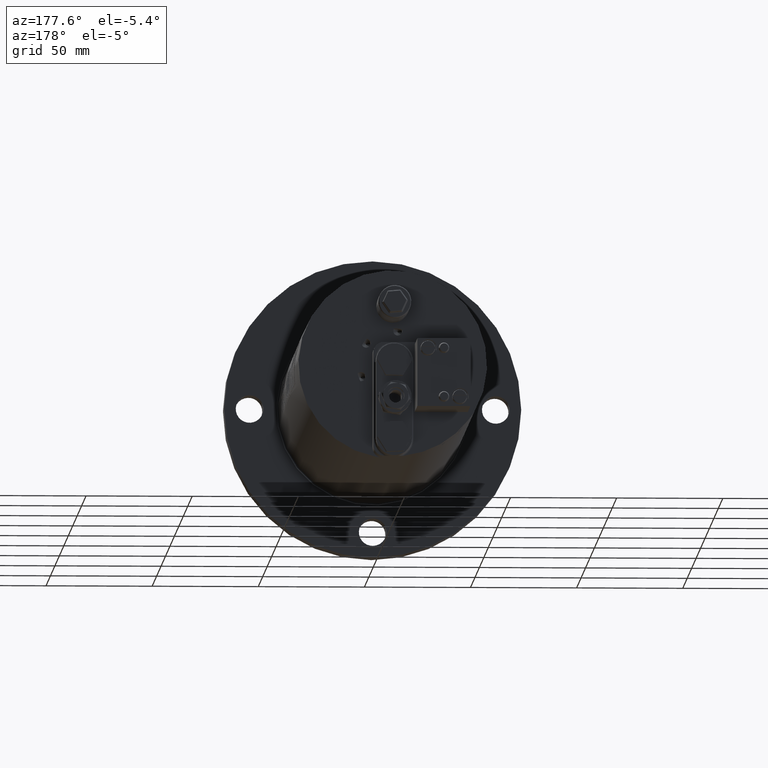
[diagram: clean part render]
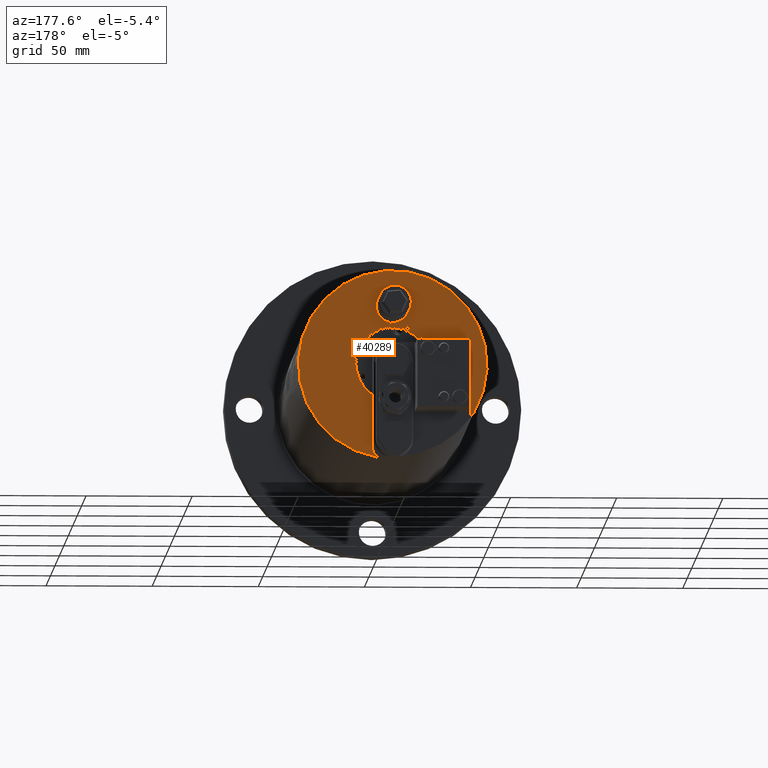
[diagram: same view with one face highlighted and labeled with its STEP entity id]
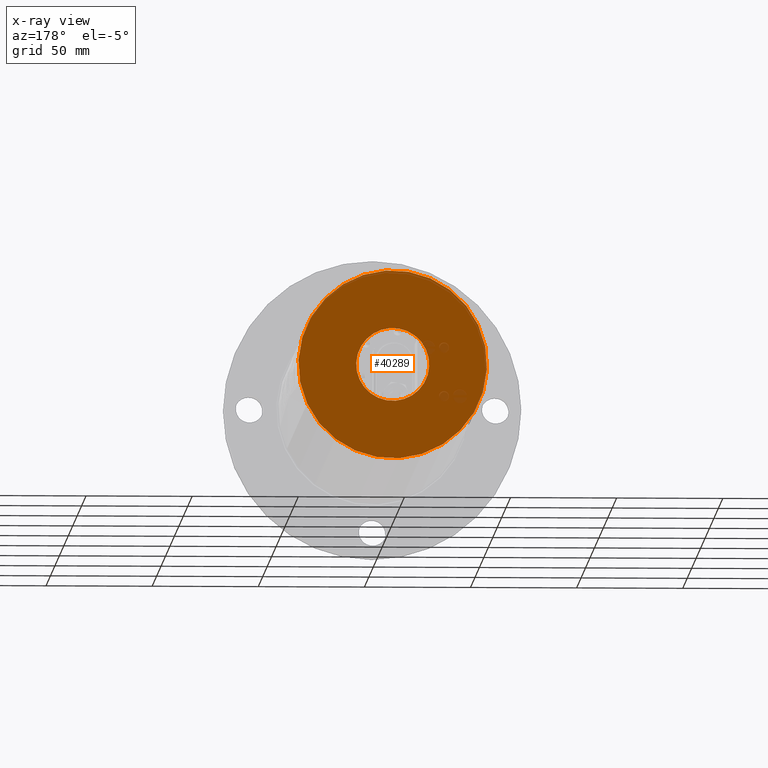
[diagram: x-ray of the same camera — body ghosted, the highlighted face saturated]
A machine part, auxiliary view. The second image highlights one B-rep face of the part: STEP entity #40289.
The next image is the same camera in x-ray: the body ghosted, the highlighted face saturated — about 2% of this face is hidden behind the body in this view.
In plain terms, the highlighted planar face has unit normal (0, 1, -0).
Its self-contained STEP definition (entity closure, byte-faithful):
#642 = VERTEX_POINT ( 'NONE', #10277 ) ;
#1740 = CIRCLE ( 'NONE', #8647, 44.45000000000001000 ) ;
#2229 = CIRCLE ( 'NONE', #34206, 17.20000000000000300 ) ;
#2609 = CARTESIAN_POINT ( 'NONE',  ( -31.81297453405828400, 218.4999999999999700, -31.04411621056921400 ) ) ;
#6696 = DIRECTION ( 'NONE',  ( 0.7157024642082970800, 4.136638137209480600E-017, 0.6984053140735480000 ) ) ;
#7114 = AXIS2_PLACEMENT_3D ( 'NONE', #24178, #14652, #37709 ) ;
#8647 = AXIS2_PLACEMENT_3D ( 'NONE', #21641, #37926, #28518 ) ;
#9175 = CIRCLE ( 'NONE', #29756, 44.45000000000001000 ) ;
#9748 = DIRECTION ( 'NONE',  ( 1.634356603239235900E-016, 1.000000000000000000, -2.267131750214071800E-016 ) ) ;
#10021 = EDGE_CURVE ( 'NONE', #34559, #11498, #1740, .T. ) ;
#10277 = CARTESIAN_POINT ( 'NONE',  ( -12.31008238438219300, 218.4999999999999700, -12.01257140206502200 ) ) ;
#10901 = CIRCLE ( 'NONE', #7114, 17.20000000000000300 ) ;
#11498 = VERTEX_POINT ( 'NONE', #18090 ) ;
#12402 = VERTEX_POINT ( 'NONE', #35837 ) ;
#14652 = DIRECTION ( 'NONE',  ( 1.634356603239235400E-016, 1.000000000000000000, -2.267131750214072300E-016 ) ) ;
#14962 = AXIS2_PLACEMENT_3D ( 'NONE', #36096, #9748, #6696 ) ;
#15001 = EDGE_CURVE ( 'NONE', #642, #12402, #10901, .T. ) ;
#16059 = FACE_OUTER_BOUND ( 'NONE', #19546, .T. ) ;
#16639 = PLANE ( 'NONE',  #14962 ) ;
#17357 = DIRECTION ( 'NONE',  ( 1.634356603239235400E-016, 1.000000000000000000, -2.267131750214072300E-016 ) ) ;
#18090 = CARTESIAN_POINT ( 'NONE',  ( 31.81297453405932500, 218.4999999999999700, 31.04411621056922900 ) ) ;
#19546 = EDGE_LOOP ( 'NONE', ( #30281, #38845 ) ) ;
#20435 = DIRECTION ( 'NONE',  ( 0.7157024642082970800, 0.0000000000000000000, 0.6984053140735481100 ) ) ;
#21641 = CARTESIAN_POINT ( 'NONE',  ( 5.145308339522807200E-013, 218.4999999999999700, 5.654495854038370500E-015 ) ) ;
#24178 = CARTESIAN_POINT ( 'NONE',  ( 5.145308339522807200E-013, 218.4999999999999700, 5.654495854038370500E-015 ) ) ;
#28150 = ORIENTED_EDGE ( 'NONE', *, *, #15001, .F. ) ;
#28518 = DIRECTION ( 'NONE',  ( 0.7157024642082970800, 0.0000000000000000000, 0.6984053140735481100 ) ) ;
#29756 = AXIS2_PLACEMENT_3D ( 'NONE', #33504, #17357, #29876 ) ;
#29876 = DIRECTION ( 'NONE',  ( 0.7157024642082970800, 0.0000000000000000000, 0.6984053140735481100 ) ) ;
#30281 = ORIENTED_EDGE ( 'NONE', *, *, #30654, .T. ) ;
#30654 = EDGE_CURVE ( 'NONE', #11498, #34559, #9175, .T. ) ;
#33286 = ORIENTED_EDGE ( 'NONE', *, *, #38123, .F. ) ;
#33504 = CARTESIAN_POINT ( 'NONE',  ( 5.145308339522807200E-013, 218.4999999999999700, 5.654495854038370500E-015 ) ) ;
#33687 = DIRECTION ( 'NONE',  ( 1.634356603239235400E-016, 1.000000000000000000, -2.267131750214072300E-016 ) ) ;
#34206 = AXIS2_PLACEMENT_3D ( 'NONE', #36712, #33687, #20435 ) ;
#34559 = VERTEX_POINT ( 'NONE', #2609 ) ;
#35837 = CARTESIAN_POINT ( 'NONE',  ( 12.31008238438322700, 218.4999999999999700, 12.01257140206503500 ) ) ;
#36096 = CARTESIAN_POINT ( 'NONE',  ( 12.31008238438322700, 218.4999999999999700, 12.01257140206503700 ) ) ;
#36712 = CARTESIAN_POINT ( 'NONE',  ( 5.145308339522807200E-013, 218.4999999999999700, 5.654495854038370500E-015 ) ) ;
#37709 = DIRECTION ( 'NONE',  ( 0.7157024642082970800, 0.0000000000000000000, 0.6984053140735481100 ) ) ;
#37926 = DIRECTION ( 'NONE',  ( 1.634356603239235400E-016, 1.000000000000000000, -2.267131750214072300E-016 ) ) ;
#38123 = EDGE_CURVE ( 'NONE', #12402, #642, #2229, .T. ) ;
#38845 = ORIENTED_EDGE ( 'NONE', *, *, #10021, .T. ) ;
#39794 = FACE_BOUND ( 'NONE', #40083, .T. ) ;
#40083 = EDGE_LOOP ( 'NONE', ( #33286, #28150 ) ) ;
#40289 = ADVANCED_FACE ( 'NONE', ( #16059, #39794 ), #16639, .T. ) ;